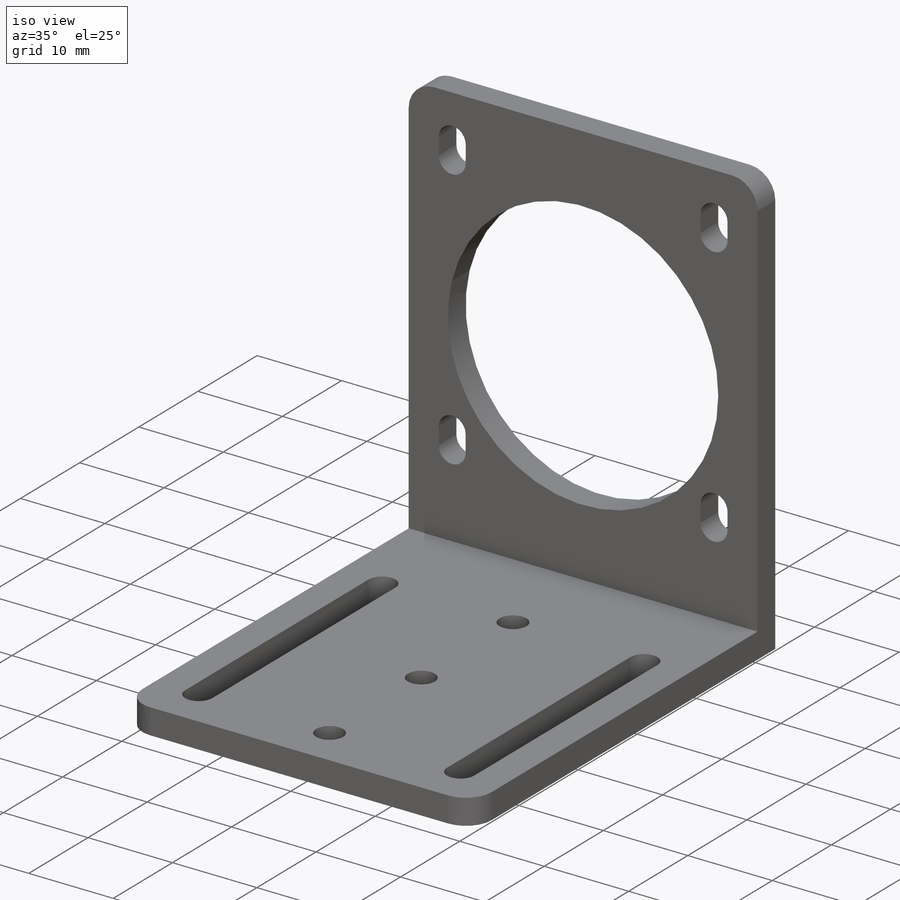
[diagram: iso view]
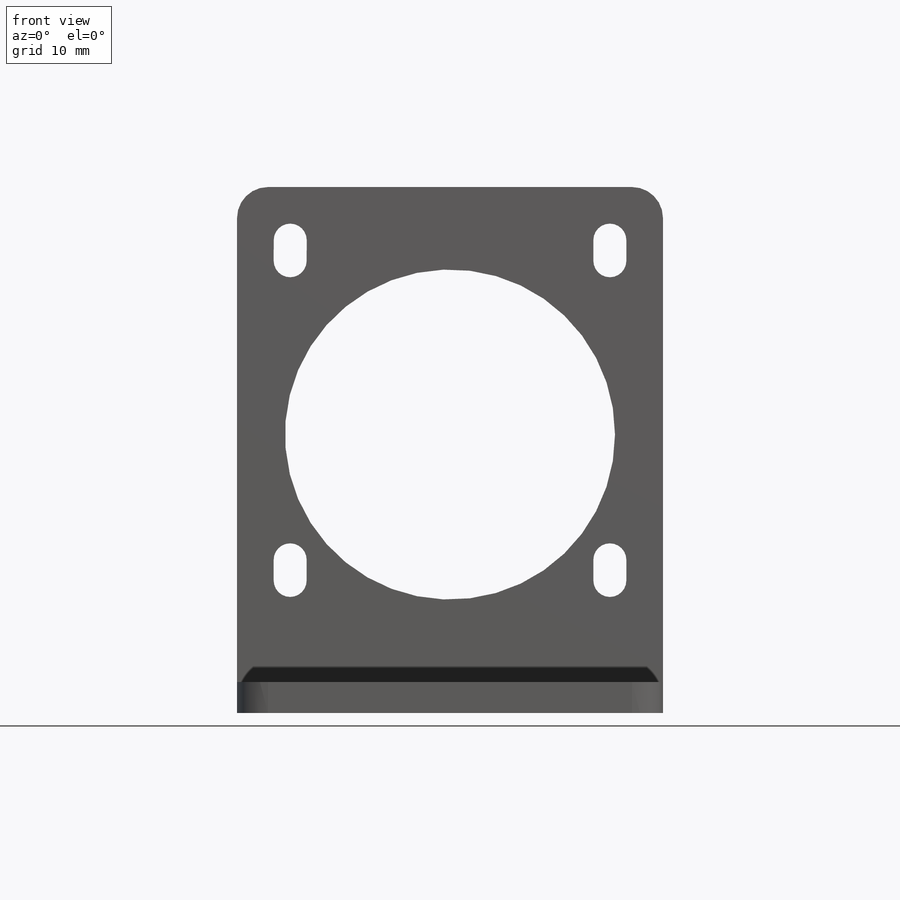
[diagram: front view]
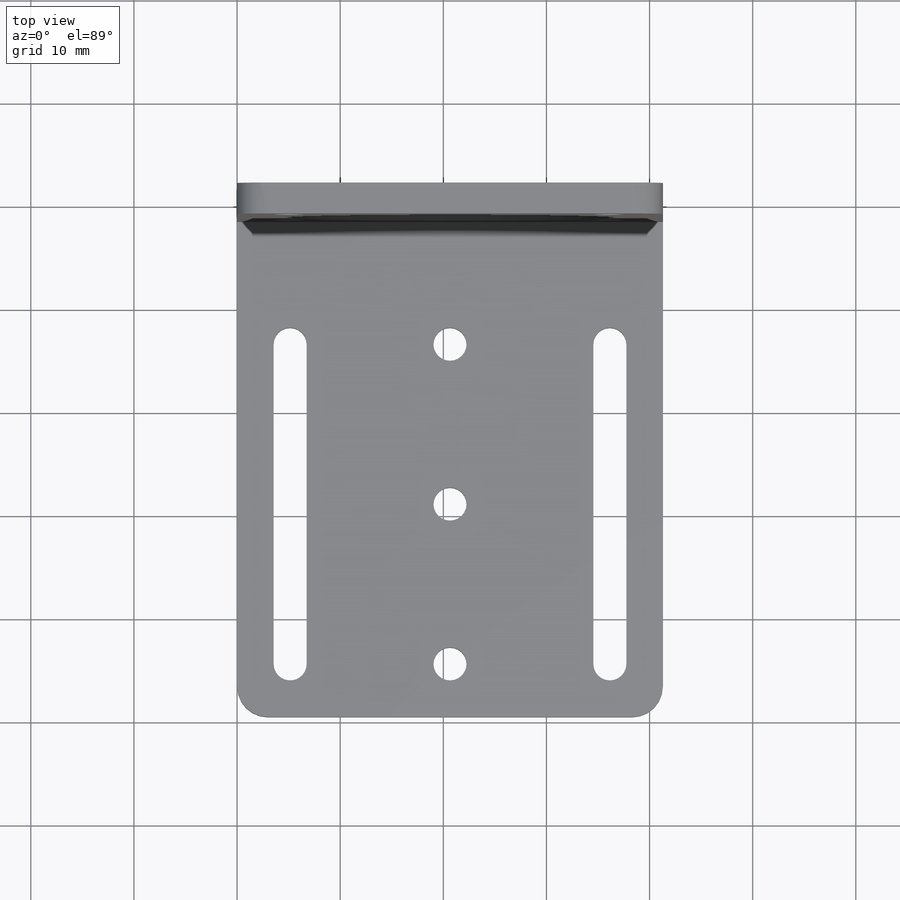
[diagram: top view]
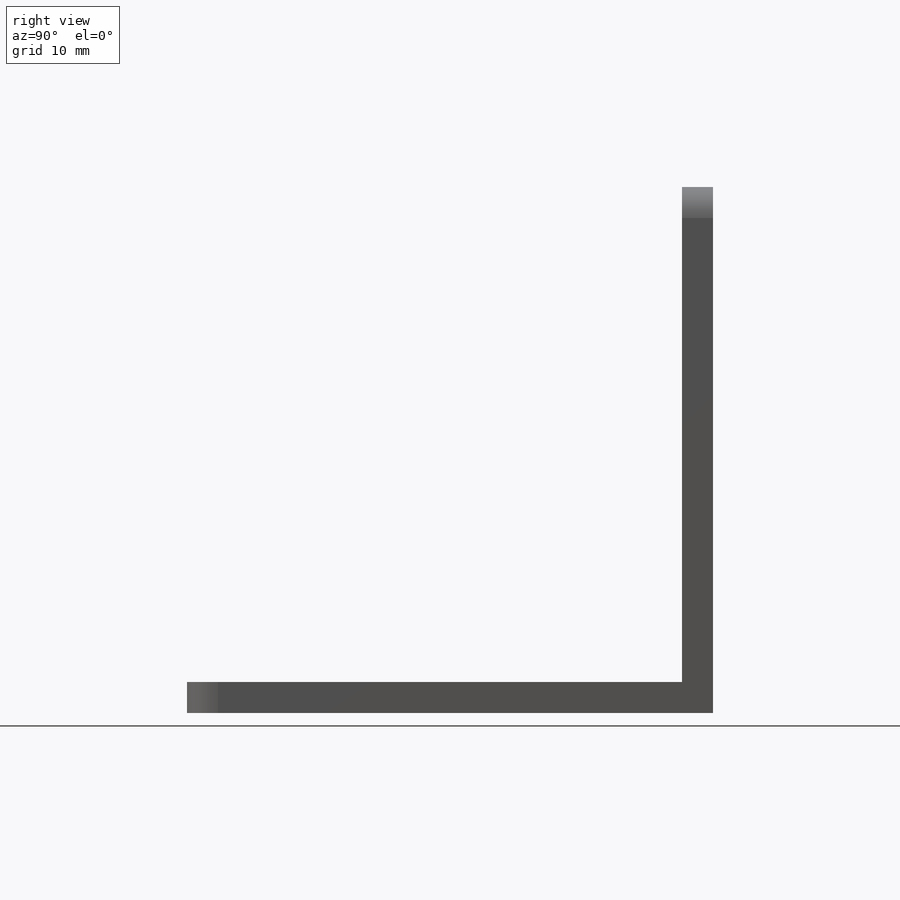
[diagram: right view]
SOLIDWORKS PART (.sldprt)
format: sldprt  version: not decoded by parser v0  size: 290,304 bytes
history: native  units: mm
features: sketch x5, cut_extrude x3, material x1, extrude x1, fillet x1 (+12 scaffold rows collapsed)
feature tree (23):
  scaffold x12  (default folders/planes/origin — collapsed)
  material  "Material <not specified>"
  sketch  "Sketch1"  dims[D1=51.0mm D2=3.0mm D3=51.0mm D4=3.0mm]
  extrude  "Boss-Extrude1"  Depth=41.3mm
  sketch  "Sketch2"  dims[D1=32.0mm]
  sketch  "Sketch3"  dims[D1=15.5mm D2=15.5mm]
  cut_extrude  "Cut-Extrude2"  Depth=41.3mm
  sketch  "Sketch4"  dims[D5=1.6mm D8=1.6mm D10=1.6mm D12=1.6mm D1=5.15mm D2=5.15mm D3=31.0mm D4=31.0mm D6=2.0mm D7=2.0mm D9=2.0mm D11=2.0mm]
  cut_extrude  "Cut-Extrude7"  Depth=41.3mm
  sketch  "Sketch8"  dims[c1.D5=1.6mm c1.D6=1.6mm c1.D7=3.2mm c1.D8=3.2mm c1.D9=3.2mm c1.D1=5.15mm c1.D2=5.15mm c1.D3=5.15mm c1.D4=~54.118416mm c2.D4=~0.940373deg c3.D4=~54.118416mm c4.D4=~0.940373deg c5.D4=31.0mm]
  cut_extrude  "Cut-Extrude8"  Depth=41.3mm
  fillet  "Fillet1"  Radius=3mm
decode coverage: 10 of 10 modeling features carry decoded parameters
note: ~ marks probable driven/reference dimensions
note: suppression state not decoded; provenance and decode notes live in map.json
